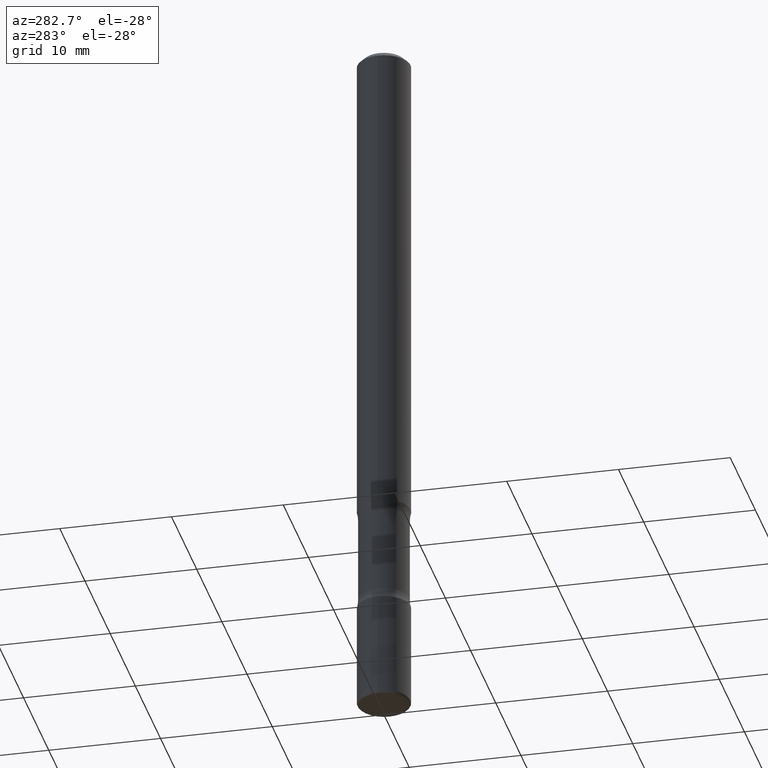
[diagram: clean part render]
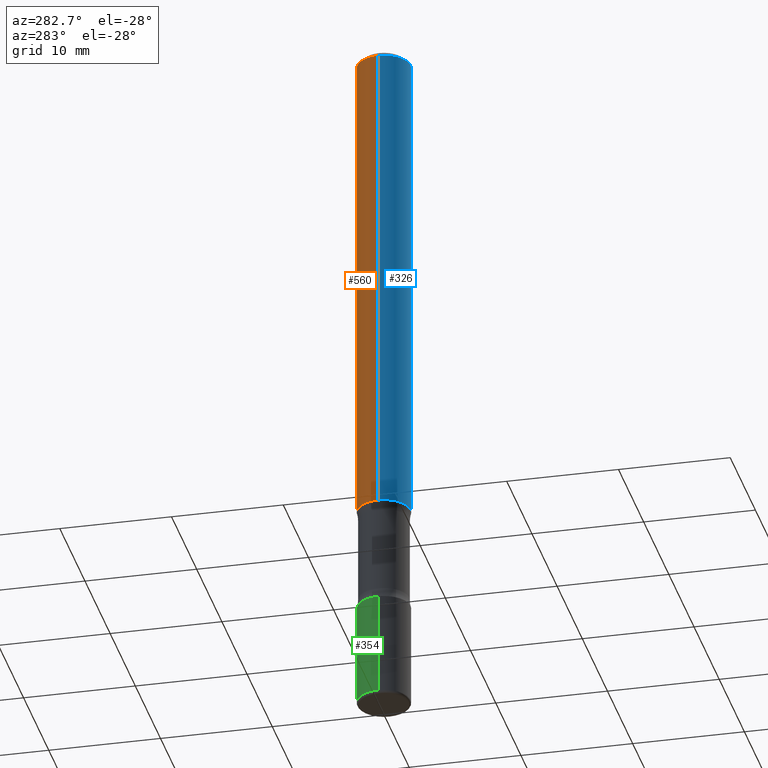
[diagram: same view with three faces highlighted in distinct colors, each labeled with its STEP entity id]
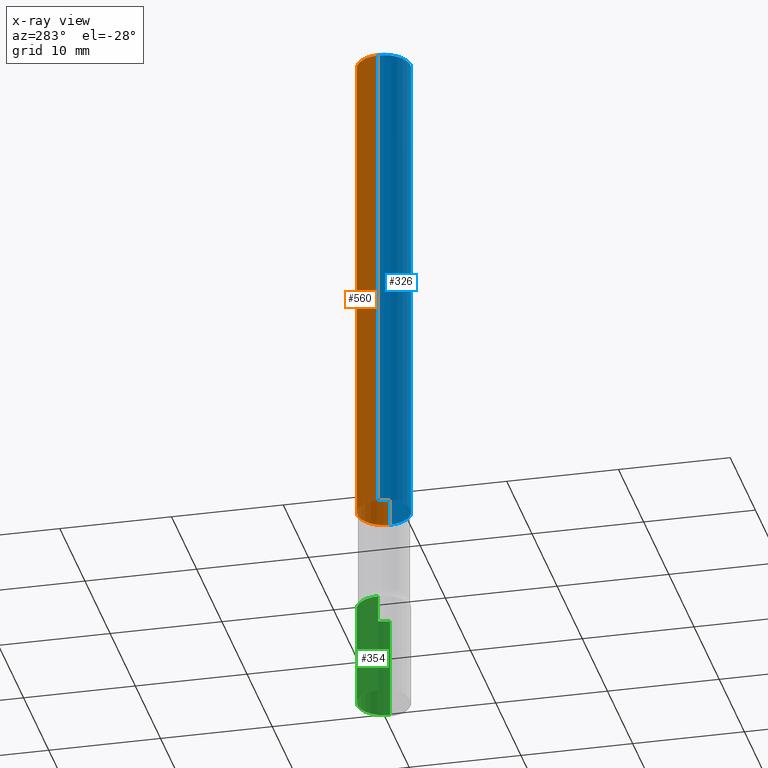
[diagram: x-ray of the same camera — body ghosted, the three highlighted faces saturated]
A machine part, auxiliary view with three faces highlighted in distinct colors.
The next image is the same camera in x-ray (body ghosted, the three faces saturated) — at least one of them is partly hidden behind the body in this view.
Their STEP definitions:

[orange] entity #560 — the highlighted cylindrical surface (edge-blend (fillet) strip) has radius 2.3812 mm, axis along (-0, 0, 1).
#1 = LINE ( 'NONE', #416, #74 ) ;
#18 = VERTEX_POINT ( 'NONE', #63 ) ;
#46 = CARTESIAN_POINT ( 'NONE',  ( 0.09374999999999981959, -7.130013140679428044E-16, -0.02000000000000001776 ) ) ;
#48 = EDGE_LOOP ( 'NONE', ( #352, #178, #89, #400 ) ) ;
#63 = CARTESIAN_POINT ( 'NONE',  ( 0.09375000000000004163, -6.764745094008592175E-15, -1.750000000000000000 ) ) ;
#74 = VECTOR ( 'NONE', #511, 39.37007874015748143 ) ;
#89 = ORIENTED_EDGE ( 'NONE', *, *, #457, .F. ) ;
#99 = LINE ( 'NONE', #174, #302 ) ;
#102 = VERTEX_POINT ( 'NONE', #46 ) ;
#153 = CARTESIAN_POINT ( 'NONE',  ( 0.000000000000000000, 0.000000000000000000, 0.000000000000000000 ) ) ;
#157 = DIRECTION ( 'NONE',  ( 1.000000000000000000, -6.982962677686266711E-15, 4.876176775795935793E-29 ) ) ;
#159 = EDGE_CURVE ( 'NONE', #18, #102, #1, .T. ) ;
#173 = CARTESIAN_POINT ( 'NONE',  ( -0.09374999999999981959, 5.848231242562233185E-16, -0.02000000000000001776 ) ) ;
#174 = CARTESIAN_POINT ( 'NONE',  ( -0.09374999999999991673, 6.661338147750933326E-16, -4.611501647113969791E-30 ) ) ;
#178 = ORIENTED_EDGE ( 'NONE', *, *, #434, .T. ) ;
#179 = DIRECTION ( 'NONE',  ( -2.445468806185136597E-29, 3.491481338843145583E-15, 1.000000000000000000 ) ) ;
#231 = VERTEX_POINT ( 'NONE', #173 ) ;
#236 = DIRECTION ( 'NONE',  ( 1.000000000000000000, -6.982962677686267499E-15, 0.000000000000000000 ) ) ;
#238 = AXIS2_PLACEMENT_3D ( 'NONE', #257, #179, #487 ) ;
#257 = CARTESIAN_POINT ( 'NONE',  ( 4.279570410823988484E-29, -6.110092342975504671E-15, -1.750000000000000000 ) ) ;
#274 = DIRECTION ( 'NONE',  ( -2.445468806185136877E-29, 3.491481338843145188E-15, 1.000000000000000000 ) ) ;
#287 = DIRECTION ( 'NONE',  ( -2.445468806185136597E-29, 3.491481338843145583E-15, 1.000000000000000000 ) ) ;
#302 = VECTOR ( 'NONE', #274, 39.37007874015748143 ) ;
#327 = CARTESIAN_POINT ( 'NONE',  ( 4.890937612370276662E-31, -6.982962677686296539E-17, -0.02000000000000001776 ) ) ;
#343 = CIRCLE ( 'NONE', #406, 0.09374999999999981959 ) ;
#352 = ORIENTED_EDGE ( 'NONE', *, *, #376, .T. ) ;
#374 = CYLINDRICAL_SURFACE ( 'NONE', #512, 0.09374999999999991673 ) ;
#376 = EDGE_CURVE ( 'NONE', #18, #437, #475, .T. ) ;
#399 = CARTESIAN_POINT ( 'NONE',  ( -0.09375000000000004163, -2.423827170101085722E-15, -1.750000000000000000 ) ) ;
#400 = ORIENTED_EDGE ( 'NONE', *, *, #159, .F. ) ;
#406 = AXIS2_PLACEMENT_3D ( 'NONE', #327, #438, #236 ) ;
#416 = CARTESIAN_POINT ( 'NONE',  ( 0.09374999999999991673, -6.546527510330869125E-16, 4.571415727308685602E-30 ) ) ;
#434 = EDGE_CURVE ( 'NONE', #437, #231, #99, .T. ) ;
#437 = VERTEX_POINT ( 'NONE', #399 ) ;
#438 = DIRECTION ( 'NONE',  ( -2.445468806185136597E-29, 3.491481338843145583E-15, 1.000000000000000000 ) ) ;
#445 = FACE_OUTER_BOUND ( 'NONE', #48, .T. ) ;
#457 = EDGE_CURVE ( 'NONE', #102, #231, #343, .T. ) ;
#475 = CIRCLE ( 'NONE', #238, 0.09375000000000004163 ) ;
#487 = DIRECTION ( 'NONE',  ( 1.000000000000000000, -6.982962677686269866E-15, 0.000000000000000000 ) ) ;
#511 = DIRECTION ( 'NONE',  ( -2.445468806185136877E-29, 3.491481338843145188E-15, 1.000000000000000000 ) ) ;
#512 = AXIS2_PLACEMENT_3D ( 'NONE', #153, #287, #157 ) ;
#560 = ADVANCED_FACE ( 'NONE', ( #445 ), #374, .T. ) ;

[blue] entity #326 — the highlighted cylindrical surface (edge-blend (fillet) strip) has radius 2.3812 mm, axis along (-0, 0, 1).
#1 = LINE ( 'NONE', #416, #74 ) ;
#18 = VERTEX_POINT ( 'NONE', #63 ) ;
#46 = CARTESIAN_POINT ( 'NONE',  ( 0.09374999999999981959, -7.130013140679428044E-16, -0.02000000000000001776 ) ) ;
#58 = CIRCLE ( 'NONE', #335, 0.09375000000000004163 ) ;
#63 = CARTESIAN_POINT ( 'NONE',  ( 0.09375000000000004163, -6.764745094008592175E-15, -1.750000000000000000 ) ) ;
#74 = VECTOR ( 'NONE', #511, 39.37007874015748143 ) ;
#76 = FACE_OUTER_BOUND ( 'NONE', #293, .T. ) ;
#98 = ORIENTED_EDGE ( 'NONE', *, *, #159, .T. ) ;
#99 = LINE ( 'NONE', #174, #302 ) ;
#102 = VERTEX_POINT ( 'NONE', #46 ) ;
#113 = ORIENTED_EDGE ( 'NONE', *, *, #434, .F. ) ;
#118 = EDGE_CURVE ( 'NONE', #231, #102, #275, .T. ) ;
#127 = DIRECTION ( 'NONE',  ( 1.000000000000000000, -6.982962677686267499E-15, 0.000000000000000000 ) ) ;
#150 = DIRECTION ( 'NONE',  ( -2.445468806185136597E-29, 3.491481338843145583E-15, 1.000000000000000000 ) ) ;
#159 = EDGE_CURVE ( 'NONE', #18, #102, #1, .T. ) ;
#173 = CARTESIAN_POINT ( 'NONE',  ( -0.09374999999999981959, 5.848231242562233185E-16, -0.02000000000000001776 ) ) ;
#174 = CARTESIAN_POINT ( 'NONE',  ( -0.09374999999999991673, 6.661338147750933326E-16, -4.611501647113969791E-30 ) ) ;
#186 = ORIENTED_EDGE ( 'NONE', *, *, #118, .F. ) ;
#214 = CARTESIAN_POINT ( 'NONE',  ( 4.890937612370276662E-31, -6.982962677686296539E-17, -0.02000000000000001776 ) ) ;
#224 = DIRECTION ( 'NONE',  ( 1.000000000000000000, -6.982962677686266711E-15, 4.876176775795935793E-29 ) ) ;
#231 = VERTEX_POINT ( 'NONE', #173 ) ;
#267 = CYLINDRICAL_SURFACE ( 'NONE', #460, 0.09374999999999991673 ) ;
#274 = DIRECTION ( 'NONE',  ( -2.445468806185136877E-29, 3.491481338843145188E-15, 1.000000000000000000 ) ) ;
#275 = CIRCLE ( 'NONE', #297, 0.09374999999999981959 ) ;
#293 = EDGE_LOOP ( 'NONE', ( #113, #395, #98, #186 ) ) ;
#297 = AXIS2_PLACEMENT_3D ( 'NONE', #214, #380, #127 ) ;
#302 = VECTOR ( 'NONE', #274, 39.37007874015748143 ) ;
#326 = ADVANCED_FACE ( 'NONE', ( #76 ), #267, .T. ) ;
#335 = AXIS2_PLACEMENT_3D ( 'NONE', #441, #150, #362 ) ;
#362 = DIRECTION ( 'NONE',  ( 1.000000000000000000, -6.982962677686269866E-15, 0.000000000000000000 ) ) ;
#380 = DIRECTION ( 'NONE',  ( -2.445468806185136597E-29, 3.491481338843145583E-15, 1.000000000000000000 ) ) ;
#395 = ORIENTED_EDGE ( 'NONE', *, *, #451, .T. ) ;
#399 = CARTESIAN_POINT ( 'NONE',  ( -0.09375000000000004163, -2.423827170101085722E-15, -1.750000000000000000 ) ) ;
#416 = CARTESIAN_POINT ( 'NONE',  ( 0.09374999999999991673, -6.546527510330869125E-16, 4.571415727308685602E-30 ) ) ;
#421 = CARTESIAN_POINT ( 'NONE',  ( 0.000000000000000000, 0.000000000000000000, 0.000000000000000000 ) ) ;
#434 = EDGE_CURVE ( 'NONE', #437, #231, #99, .T. ) ;
#437 = VERTEX_POINT ( 'NONE', #399 ) ;
#441 = CARTESIAN_POINT ( 'NONE',  ( 4.279570410823988484E-29, -6.110092342975504671E-15, -1.750000000000000000 ) ) ;
#451 = EDGE_CURVE ( 'NONE', #437, #18, #58, .T. ) ;
#460 = AXIS2_PLACEMENT_3D ( 'NONE', #421, #519, #224 ) ;
#511 = DIRECTION ( 'NONE',  ( -2.445468806185136877E-29, 3.491481338843145188E-15, 1.000000000000000000 ) ) ;
#519 = DIRECTION ( 'NONE',  ( -2.445468806185136597E-29, 3.491481338843145583E-15, 1.000000000000000000 ) ) ;

[green] entity #354 — the highlighted cylindrical surface (edge-blend (fillet) strip) has radius 2.3813 mm, axis along (-0, 0, 1).
#2 = EDGE_LOOP ( 'NONE', ( #294, #223, #277, #60 ) ) ;
#16 = VERTEX_POINT ( 'NONE', #392 ) ;
#19 = EDGE_CURVE ( 'NONE', #16, #57, #172, .T. ) ;
#47 = AXIS2_PLACEMENT_3D ( 'NONE', #289, #312, #189 ) ;
#57 = VERTEX_POINT ( 'NONE', #299 ) ;
#60 = ORIENTED_EDGE ( 'NONE', *, *, #315, .F. ) ;
#91 = VERTEX_POINT ( 'NONE', #205 ) ;
#125 = CARTESIAN_POINT ( 'NONE',  ( -0.09375000000000002776, 6.661338147750941215E-16, -4.611501647113975397E-30 ) ) ;
#140 = DIRECTION ( 'NONE',  ( -2.445468806185136877E-29, 3.491481338843145188E-15, 1.000000000000000000 ) ) ;
#149 = CIRCLE ( 'NONE', #47, 0.09375000000000002776 ) ;
#152 = DIRECTION ( 'NONE',  ( 1.000000000000000000, -6.982962677686270655E-15, 0.000000000000000000 ) ) ;
#154 = VECTOR ( 'NONE', #303, 39.37007874015748143 ) ;
#155 = AXIS2_PLACEMENT_3D ( 'NONE', #417, #387, #270 ) ;
#156 = VECTOR ( 'NONE', #140, 39.37007874015748143 ) ;
#172 = CIRCLE ( 'NONE', #533, 0.09375000000000002776 ) ;
#189 = DIRECTION ( 'NONE',  ( 1.000000000000000000, -6.982962677686270655E-15, 0.000000000000000000 ) ) ;
#204 = CARTESIAN_POINT ( 'NONE',  ( 5.196621213143415268E-29, -7.419397845041685201E-15, -2.125000000000000000 ) ) ;
#205 = CARTESIAN_POINT ( 'NONE',  ( -0.09375000000000005551, -8.027654718944337792E-15, -2.489999999999999769 ) ) ;
#213 = CARTESIAN_POINT ( 'NONE',  ( 0.09375000000000002776, -6.546527510330876027E-16, 4.571415727308691207E-30 ) ) ;
#219 = EDGE_CURVE ( 'NONE', #91, #57, #424, .T. ) ;
#223 = ORIENTED_EDGE ( 'NONE', *, *, #219, .T. ) ;
#261 = LINE ( 'NONE', #213, #156 ) ;
#270 = DIRECTION ( 'NONE',  ( 1.000000000000000000, -6.982962677686265922E-15, 4.876176775795935793E-29 ) ) ;
#277 = ORIENTED_EDGE ( 'NONE', *, *, #19, .F. ) ;
#289 = CARTESIAN_POINT ( 'NONE',  ( 6.089217327400989947E-29, -8.693788533719431716E-15, -2.489999999999999769 ) ) ;
#294 = ORIENTED_EDGE ( 'NONE', *, *, #403, .T. ) ;
#299 = CARTESIAN_POINT ( 'NONE',  ( -0.09375000000000002776, -7.390459374605464534E-15, -2.125000000000000000 ) ) ;
#303 = DIRECTION ( 'NONE',  ( -2.445468806185136877E-29, 3.491481338843145188E-15, 1.000000000000000000 ) ) ;
#306 = CYLINDRICAL_SURFACE ( 'NONE', #155, 0.09375000000000002776 ) ;
#312 = DIRECTION ( 'NONE',  ( -2.445468806185136597E-29, 3.491481338843145583E-15, 1.000000000000000000 ) ) ;
#315 = EDGE_CURVE ( 'NONE', #530, #16, #261, .T. ) ;
#354 = ADVANCED_FACE ( 'NONE', ( #478 ), #306, .T. ) ;
#369 = DIRECTION ( 'NONE',  ( -2.445468806185136597E-29, 3.491481338843145583E-15, 1.000000000000000000 ) ) ;
#387 = DIRECTION ( 'NONE',  ( -2.445468806185136597E-29, 3.491481338843145583E-15, 1.000000000000000000 ) ) ;
#392 = CARTESIAN_POINT ( 'NONE',  ( 0.09375000000000002776, -8.074050596074771916E-15, -2.125000000000000000 ) ) ;
#403 = EDGE_CURVE ( 'NONE', #530, #91, #149, .T. ) ;
#417 = CARTESIAN_POINT ( 'NONE',  ( 0.000000000000000000, 0.000000000000000000, 0.000000000000000000 ) ) ;
#424 = LINE ( 'NONE', #125, #154 ) ;
#478 = FACE_OUTER_BOUND ( 'NONE', #2, .T. ) ;
#530 = VERTEX_POINT ( 'NONE', #540 ) ;
#533 = AXIS2_PLACEMENT_3D ( 'NONE', #204, #369, #152 ) ;
#540 = CARTESIAN_POINT ( 'NONE',  ( 0.09375000000000005551, -9.348441284752520009E-15, -2.489999999999999769 ) ) ;